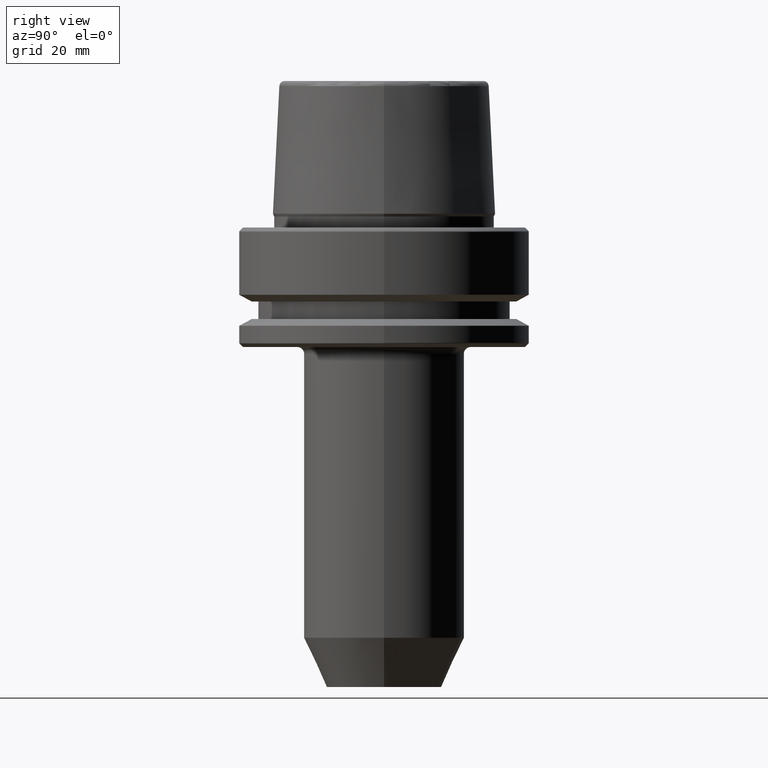
[diagram: clean part render]
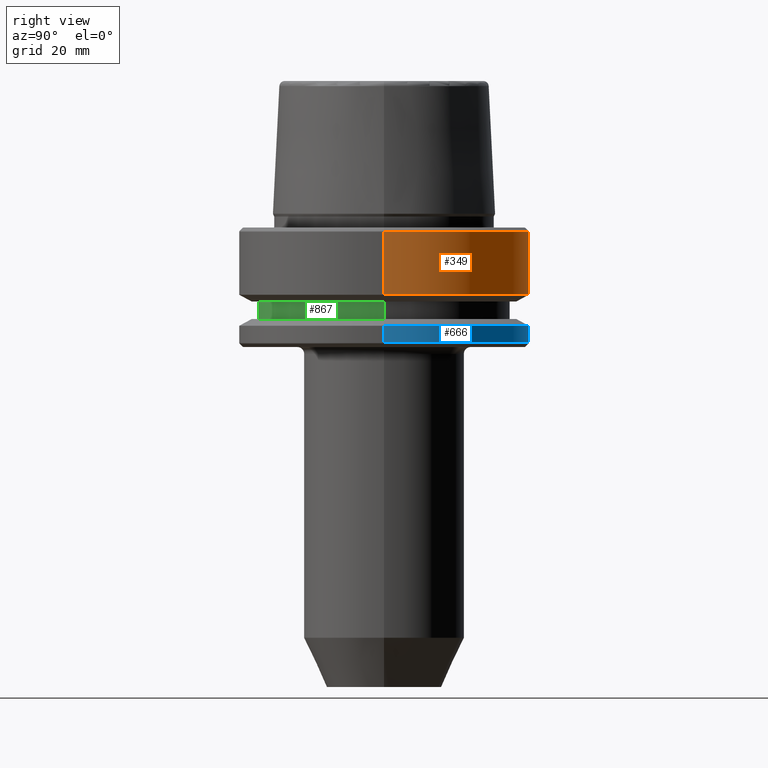
[diagram: same view with three faces highlighted in distinct colors, each labeled with its STEP entity id]
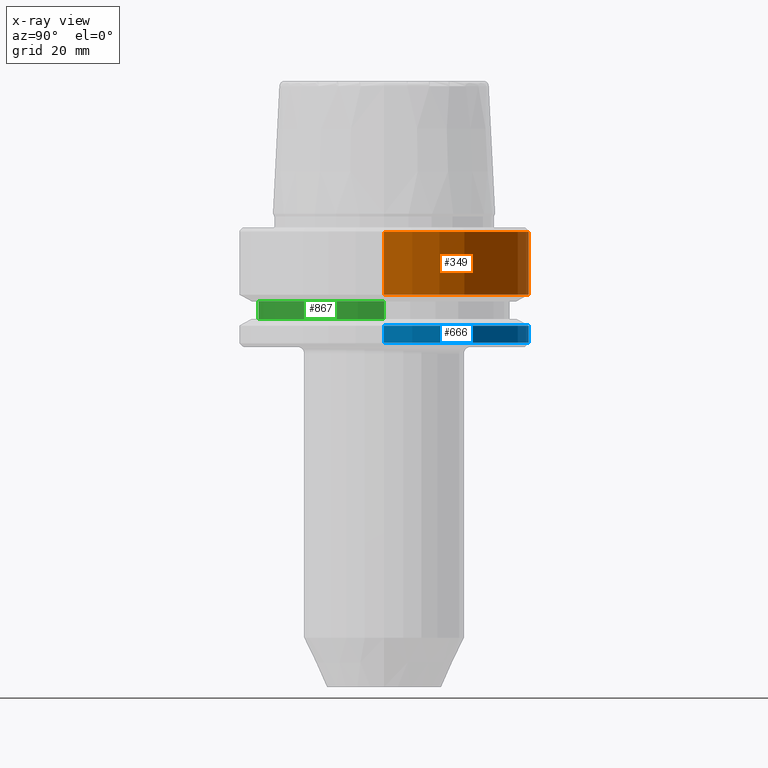
[diagram: x-ray of the same camera — body ghosted, the three highlighted faces saturated]
A machine part, right view with three faces highlighted in distinct colors.
The next image is the same camera in x-ray (body ghosted, the three faces saturated) — at least one of them is partly hidden behind the body in this view.
Their STEP definitions:

[orange] entity #349 — the highlighted cylindrical surface (partial cylindrical patch) has radius 31.5 mm, axis along (-0, -0, 1).
#83 = DIRECTION ( 'NONE',  ( -0.0000000000000000000, -0.0000000000000000000, 1.000000000000000000 ) ) ;
#106 = CARTESIAN_POINT ( 'NONE',  ( 31.50000000000000000, 0.0000000000000000000, 78.96908074195309300 ) ) ;
#108 = LINE ( 'NONE', #576, #1143 ) ;
#163 = ORIENTED_EDGE ( 'NONE', *, *, #1014, .F. ) ;
#176 = CARTESIAN_POINT ( 'NONE',  ( 0.0000000000000000000, 0.0000000000000000000, -14.62250092524070100 ) ) ;
#186 = DIRECTION ( 'NONE',  ( -0.0000000000000000000, -0.0000000000000000000, 1.000000000000000000 ) ) ;
#197 = CARTESIAN_POINT ( 'NONE',  ( -31.50000000000000000, 3.857637417314162700E-015, -14.62250092524070100 ) ) ;
#218 = CARTESIAN_POINT ( 'NONE',  ( 0.0000000000000000000, 0.0000000000000000000, -0.9656854249492363700 ) ) ;
#260 = CARTESIAN_POINT ( 'NONE',  ( -31.50000000000000000, 3.857637417314162700E-015, -0.9656854249492363700 ) ) ;
#292 = DIRECTION ( 'NONE',  ( -0.0000000000000000000, -0.0000000000000000000, 1.000000000000000000 ) ) ;
#303 = ORIENTED_EDGE ( 'NONE', *, *, #890, .T. ) ;
#307 = DIRECTION ( 'NONE',  ( 1.000000000000000000, 0.0000000000000000000, 0.0000000000000000000 ) ) ;
#312 = DIRECTION ( 'NONE',  ( 1.000000000000000000, 0.0000000000000000000, 0.0000000000000000000 ) ) ;
#324 = CARTESIAN_POINT ( 'NONE',  ( 31.50000000000000000, 0.0000000000000000000, -0.9656854249492363700 ) ) ;
#349 = ADVANCED_FACE ( 'NONE', ( #734 ), #703, .T. ) ;
#427 = DIRECTION ( 'NONE',  ( 1.000000000000000000, 0.0000000000000000000, 0.0000000000000000000 ) ) ;
#472 = CIRCLE ( 'NONE', #1240, 31.50000000000000000 ) ;
#486 = DIRECTION ( 'NONE',  ( -0.0000000000000000000, -0.0000000000000000000, 1.000000000000000000 ) ) ;
#576 = CARTESIAN_POINT ( 'NONE',  ( -31.50000000000000000, 3.857637417314162700E-015, 78.96908074195309300 ) ) ;
#684 = VERTEX_POINT ( 'NONE', #197 ) ;
#699 = VERTEX_POINT ( 'NONE', #324 ) ;
#701 = VECTOR ( 'NONE', #292, 1000.000000000000000 ) ;
#703 = CYLINDRICAL_SURFACE ( 'NONE', #990, 31.50000000000000000 ) ;
#716 = VERTEX_POINT ( 'NONE', #260 ) ;
#732 = VERTEX_POINT ( 'NONE', #1149 ) ;
#734 = FACE_OUTER_BOUND ( 'NONE', #1231, .T. ) ;
#747 = CIRCLE ( 'NONE', #928, 31.50000000000000000 ) ;
#890 = EDGE_CURVE ( 'NONE', #732, #684, #472, .T. ) ;
#891 = DIRECTION ( 'NONE',  ( -0.0000000000000000000, -0.0000000000000000000, 1.000000000000000000 ) ) ;
#928 = AXIS2_PLACEMENT_3D ( 'NONE', #218, #891, #312 ) ;
#952 = ORIENTED_EDGE ( 'NONE', *, *, #1069, .T. ) ;
#970 = LINE ( 'NONE', #106, #701 ) ;
#990 = AXIS2_PLACEMENT_3D ( 'NONE', #1046, #83, #427 ) ;
#1014 = EDGE_CURVE ( 'NONE', #732, #699, #970, .T. ) ;
#1042 = ORIENTED_EDGE ( 'NONE', *, *, #1176, .F. ) ;
#1046 = CARTESIAN_POINT ( 'NONE',  ( 0.0000000000000000000, 0.0000000000000000000, 78.96908074195309300 ) ) ;
#1069 = EDGE_CURVE ( 'NONE', #684, #716, #108, .T. ) ;
#1143 = VECTOR ( 'NONE', #486, 1000.000000000000000 ) ;
#1149 = CARTESIAN_POINT ( 'NONE',  ( 31.50000000000000000, 0.0000000000000000000, -14.62250092524070100 ) ) ;
#1176 = EDGE_CURVE ( 'NONE', #699, #716, #747, .T. ) ;
#1231 = EDGE_LOOP ( 'NONE', ( #303, #952, #1042, #163 ) ) ;
#1240 = AXIS2_PLACEMENT_3D ( 'NONE', #176, #186, #307 ) ;

[blue] entity #666 — the highlighted cylindrical surface (partial cylindrical patch) has radius 31.5 mm, axis along (-0, -0, 1).
#1 = DIRECTION ( 'NONE',  ( -0.0000000000000000000, -0.0000000000000000000, 1.000000000000000000 ) ) ;
#121 = DIRECTION ( 'NONE',  ( 1.000000000000000000, 0.0000000000000000000, 0.0000000000000000000 ) ) ;
#131 = CIRCLE ( 'NONE', #405, 31.50000000000000000 ) ;
#138 = DIRECTION ( 'NONE',  ( -0.0000000000000000000, -0.0000000000000000000, 1.000000000000000000 ) ) ;
#162 = EDGE_CURVE ( 'NONE', #404, #659, #1161, .T. ) ;
#175 = CYLINDRICAL_SURFACE ( 'NONE', #1116, 31.50000000000000000 ) ;
#180 = CARTESIAN_POINT ( 'NONE',  ( 0.0000000000000000000, 0.0000000000000000000, -25.03431457505077200 ) ) ;
#208 = VECTOR ( 'NONE', #1, 1000.000000000000000 ) ;
#380 = VECTOR ( 'NONE', #403, 1000.000000000000000 ) ;
#403 = DIRECTION ( 'NONE',  ( -0.0000000000000000000, -0.0000000000000000000, 1.000000000000000000 ) ) ;
#404 = VERTEX_POINT ( 'NONE', #581 ) ;
#405 = AXIS2_PLACEMENT_3D ( 'NONE', #180, #650, #1249 ) ;
#411 = CARTESIAN_POINT ( 'NONE',  ( 0.0000000000000000000, 0.0000000000000000000, -21.37749907475931700 ) ) ;
#426 = ORIENTED_EDGE ( 'NONE', *, *, #162, .T. ) ;
#459 = LINE ( 'NONE', #1205, #208 ) ;
#469 = CARTESIAN_POINT ( 'NONE',  ( 0.0000000000000000000, 0.0000000000000000000, 78.96908074195309300 ) ) ;
#487 = CARTESIAN_POINT ( 'NONE',  ( -31.50000000000000000, 3.857637417314162700E-015, -21.37749907475931700 ) ) ;
#521 = DIRECTION ( 'NONE',  ( -0.0000000000000000000, -0.0000000000000000000, 1.000000000000000000 ) ) ;
#557 = ORIENTED_EDGE ( 'NONE', *, *, #751, .F. ) ;
#581 = CARTESIAN_POINT ( 'NONE',  ( -31.50000000000000000, 3.857637417314161900E-015, -25.03431457505077200 ) ) ;
#626 = EDGE_CURVE ( 'NONE', #954, #1106, #459, .T. ) ;
#648 = ORIENTED_EDGE ( 'NONE', *, *, #944, .T. ) ;
#650 = DIRECTION ( 'NONE',  ( -0.0000000000000000000, -0.0000000000000000000, 1.000000000000000000 ) ) ;
#659 = VERTEX_POINT ( 'NONE', #487 ) ;
#666 = ADVANCED_FACE ( 'NONE', ( #677 ), #175, .T. ) ;
#677 = FACE_OUTER_BOUND ( 'NONE', #835, .T. ) ;
#745 = CARTESIAN_POINT ( 'NONE',  ( 31.50000000000000000, 0.0000000000000000000, -25.03431457505077200 ) ) ;
#751 = EDGE_CURVE ( 'NONE', #1106, #659, #887, .T. ) ;
#754 = DIRECTION ( 'NONE',  ( 1.000000000000000000, 0.0000000000000000000, 0.0000000000000000000 ) ) ;
#805 = ORIENTED_EDGE ( 'NONE', *, *, #626, .F. ) ;
#835 = EDGE_LOOP ( 'NONE', ( #648, #426, #557, #805 ) ) ;
#887 = CIRCLE ( 'NONE', #1169, 31.50000000000000000 ) ;
#936 = CARTESIAN_POINT ( 'NONE',  ( -31.50000000000000000, 3.857637417314162700E-015, 78.96908074195309300 ) ) ;
#944 = EDGE_CURVE ( 'NONE', #954, #404, #131, .T. ) ;
#954 = VERTEX_POINT ( 'NONE', #745 ) ;
#1106 = VERTEX_POINT ( 'NONE', #1230 ) ;
#1116 = AXIS2_PLACEMENT_3D ( 'NONE', #469, #521, #754 ) ;
#1161 = LINE ( 'NONE', #936, #380 ) ;
#1169 = AXIS2_PLACEMENT_3D ( 'NONE', #411, #138, #121 ) ;
#1205 = CARTESIAN_POINT ( 'NONE',  ( 31.50000000000000000, 0.0000000000000000000, 78.96908074195309300 ) ) ;
#1230 = CARTESIAN_POINT ( 'NONE',  ( 31.50000000000000000, 0.0000000000000000000, -21.37749907475931700 ) ) ;
#1249 = DIRECTION ( 'NONE',  ( 1.000000000000000000, 0.0000000000000000000, 0.0000000000000000000 ) ) ;

[green] entity #867 — the highlighted cylindrical surface (partial cylindrical patch) has radius 27.5 mm, axis along (-0, -0, 1).
#61 = CARTESIAN_POINT ( 'NONE',  ( 0.0000000000000000000, 0.0000000000000000000, -16.10000000000001600 ) ) ;
#88 = CARTESIAN_POINT ( 'NONE',  ( 0.0000000000000000000, 0.0000000000000000000, -19.90000000000001600 ) ) ;
#89 = VECTOR ( 'NONE', #235, 1000.000000000000000 ) ;
#120 = AXIS2_PLACEMENT_3D ( 'NONE', #471, #297, #980 ) ;
#212 = CARTESIAN_POINT ( 'NONE',  ( -27.49999999999999600, 3.367778697655220900E-015, -19.90000000000001600 ) ) ;
#235 = DIRECTION ( 'NONE',  ( -0.0000000000000000000, -0.0000000000000000000, 1.000000000000000000 ) ) ;
#272 = AXIS2_PLACEMENT_3D ( 'NONE', #88, #1101, #788 ) ;
#276 = FACE_OUTER_BOUND ( 'NONE', #550, .T. ) ;
#297 = DIRECTION ( 'NONE',  ( -0.0000000000000000000, -0.0000000000000000000, 1.000000000000000000 ) ) ;
#314 = CARTESIAN_POINT ( 'NONE',  ( 27.49999999999999600, 0.0000000000000000000, 78.96908074195309300 ) ) ;
#376 = AXIS2_PLACEMENT_3D ( 'NONE', #61, #830, #864 ) ;
#471 = CARTESIAN_POINT ( 'NONE',  ( 0.0000000000000000000, 0.0000000000000000000, 78.96908074195309300 ) ) ;
#478 = ORIENTED_EDGE ( 'NONE', *, *, #824, .T. ) ;
#536 = VECTOR ( 'NONE', #763, 1000.000000000000000 ) ;
#550 = EDGE_LOOP ( 'NONE', ( #644, #908, #478, #1007 ) ) ;
#556 = CARTESIAN_POINT ( 'NONE',  ( -27.49999999999999600, 3.367778697655220900E-015, -16.10000000000001600 ) ) ;
#614 = CARTESIAN_POINT ( 'NONE',  ( 27.49999999999999600, 0.0000000000000000000, -19.90000000000001600 ) ) ;
#644 = ORIENTED_EDGE ( 'NONE', *, *, #780, .F. ) ;
#673 = EDGE_CURVE ( 'NONE', #1023, #742, #946, .T. ) ;
#704 = CARTESIAN_POINT ( 'NONE',  ( -27.49999999999999600, 3.367778697655220900E-015, 78.96908074195309300 ) ) ;
#742 = VERTEX_POINT ( 'NONE', #614 ) ;
#763 = DIRECTION ( 'NONE',  ( -0.0000000000000000000, -0.0000000000000000000, 1.000000000000000000 ) ) ;
#780 = EDGE_CURVE ( 'NONE', #1023, #819, #1093, .T. ) ;
#788 = DIRECTION ( 'NONE',  ( 1.000000000000000000, 0.0000000000000000000, 0.0000000000000000000 ) ) ;
#819 = VERTEX_POINT ( 'NONE', #556 ) ;
#824 = EDGE_CURVE ( 'NONE', #742, #965, #1059, .T. ) ;
#830 = DIRECTION ( 'NONE',  ( -0.0000000000000000000, -0.0000000000000000000, 1.000000000000000000 ) ) ;
#864 = DIRECTION ( 'NONE',  ( 1.000000000000000000, 0.0000000000000000000, 0.0000000000000000000 ) ) ;
#867 = ADVANCED_FACE ( 'NONE', ( #276 ), #1226, .T. ) ;
#908 = ORIENTED_EDGE ( 'NONE', *, *, #673, .T. ) ;
#946 = CIRCLE ( 'NONE', #272, 27.49999999999999600 ) ;
#955 = EDGE_CURVE ( 'NONE', #819, #965, #1107, .T. ) ;
#965 = VERTEX_POINT ( 'NONE', #1152 ) ;
#980 = DIRECTION ( 'NONE',  ( 1.000000000000000000, 0.0000000000000000000, 0.0000000000000000000 ) ) ;
#1007 = ORIENTED_EDGE ( 'NONE', *, *, #955, .F. ) ;
#1023 = VERTEX_POINT ( 'NONE', #212 ) ;
#1059 = LINE ( 'NONE', #314, #536 ) ;
#1093 = LINE ( 'NONE', #704, #89 ) ;
#1101 = DIRECTION ( 'NONE',  ( -0.0000000000000000000, -0.0000000000000000000, 1.000000000000000000 ) ) ;
#1107 = CIRCLE ( 'NONE', #376, 27.49999999999999600 ) ;
#1152 = CARTESIAN_POINT ( 'NONE',  ( 27.49999999999999600, 0.0000000000000000000, -16.10000000000001600 ) ) ;
#1226 = CYLINDRICAL_SURFACE ( 'NONE', #120, 27.49999999999999600 ) ;